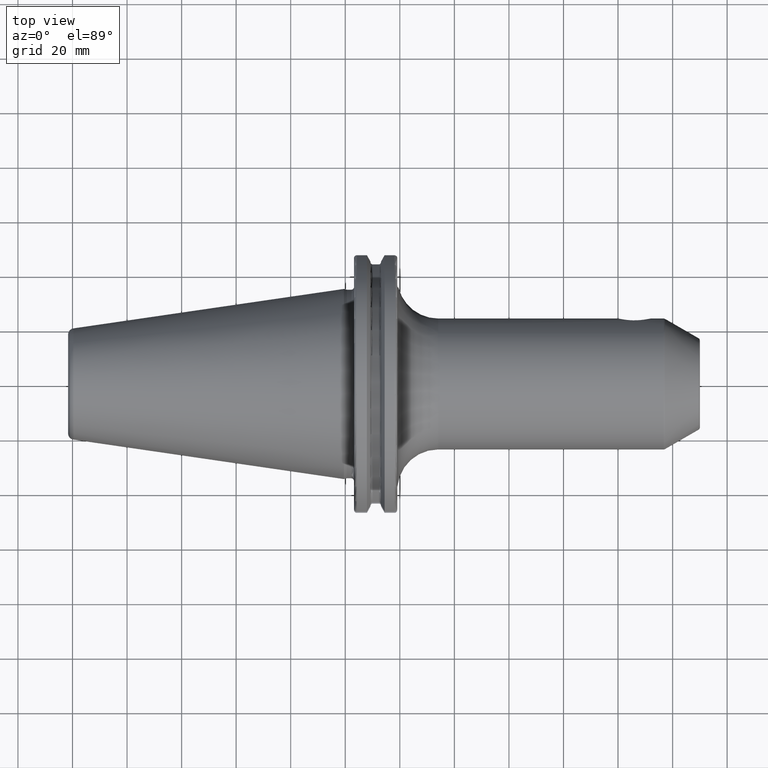
[diagram: clean part render]
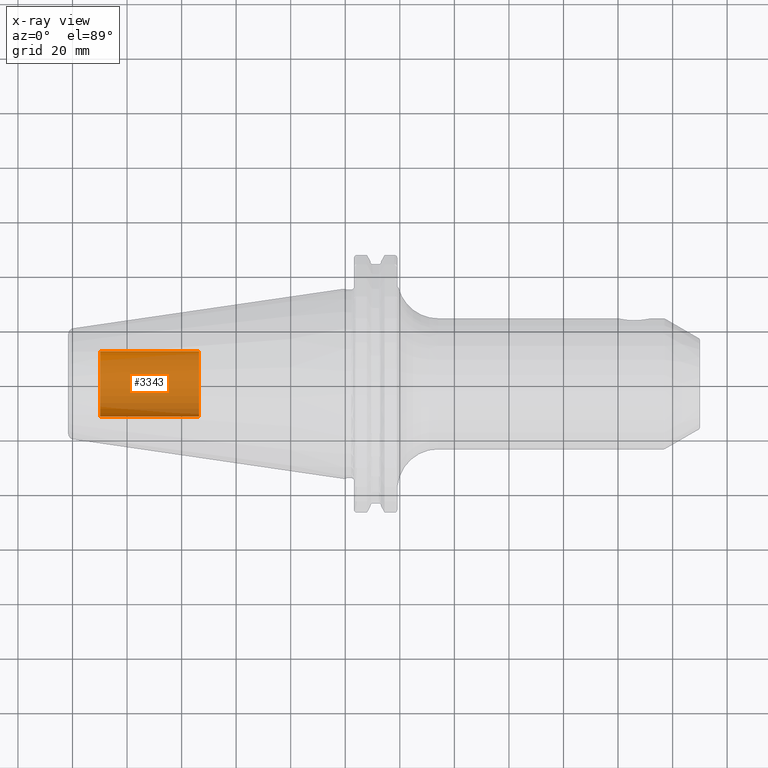
[diagram: x-ray — body ghosted, one internal face saturated and labeled with its STEP entity id]
A machine part, top view, then the same camera in x-ray: the body is ghosted and one INTERNAL B-rep face — a face not visible from any outside direction — is saturated and labeled: STEP entity #3343.
In plain terms, the highlighted cylindrical surface (edge-blend (fillet) strip) has radius 12.0032 mm, axis along (1, 0, 0).
Its self-contained STEP definition (entity closure, byte-faithful):
#3278=CARTESIAN_POINT('',(-8.985E1,0.E0,0.E0));
#3279=DIRECTION('',(-1.E0,0.E0,0.E0));
#3280=DIRECTION('',(0.E0,1.E0,0.E0));
#3281=AXIS2_PLACEMENT_3D('',#3278,#3279,#3280);
#3283=DIRECTION('',(1.E0,0.E0,0.E0));
#3284=VECTOR('',#3283,3.625E1);
#3285=CARTESIAN_POINT('',(-8.985E1,-1.200325E1,0.E0));
#3286=LINE('',#3285,#3284);
#3292=DIRECTION('',(1.E0,0.E0,0.E0));
#3293=VECTOR('',#3292,3.625E1);
#3294=CARTESIAN_POINT('',(-8.985E1,1.200325E1,0.E0));
#3295=LINE('',#3294,#3293);
#3301=CARTESIAN_POINT('',(-5.36E1,0.E0,0.E0));
#3302=DIRECTION('',(1.E0,0.E0,0.E0));
#3303=DIRECTION('',(0.E0,-1.E0,0.E0));
#3304=AXIS2_PLACEMENT_3D('',#3301,#3302,#3303);
#3316=CARTESIAN_POINT('',(-8.985E1,1.200325E1,0.E0));
#3317=CARTESIAN_POINT('',(-8.985E1,-1.200325E1,0.E0));
#3318=VERTEX_POINT('',#3316);
#3319=VERTEX_POINT('',#3317);
#3320=CARTESIAN_POINT('',(-5.36E1,1.200325E1,0.E0));
#3321=CARTESIAN_POINT('',(-5.36E1,-1.200325E1,0.E0));
#3322=VERTEX_POINT('',#3320);
#3323=VERTEX_POINT('',#3321);
#3328=CARTESIAN_POINT('',(-8.985E1,0.E0,0.E0));
#3329=DIRECTION('',(1.E0,0.E0,0.E0));
#3330=DIRECTION('',(0.E0,1.E0,0.E0));
#3331=AXIS2_PLACEMENT_3D('',#3328,#3329,#3330);
#3332=CYLINDRICAL_SURFACE('',#3331,1.200325E1);
#3334=ORIENTED_EDGE('',*,*,#3333,.T.);
#3336=ORIENTED_EDGE('',*,*,#3335,.T.);
#3338=ORIENTED_EDGE('',*,*,#3337,.T.);
#3340=ORIENTED_EDGE('',*,*,#3339,.F.);
#3341=EDGE_LOOP('',(#3334,#3336,#3338,#3340));
#3342=FACE_OUTER_BOUND('',#3341,.F.);
#3343=ADVANCED_FACE('',(#3342),#3332,.T.);
#3282=CIRCLE('',#3281,1.200325E1);
#3305=CIRCLE('',#3304,1.200325E1);
#3333=EDGE_CURVE('',#3318,#3319,#3282,.T.);
#3335=EDGE_CURVE('',#3319,#3323,#3286,.T.);
#3337=EDGE_CURVE('',#3323,#3322,#3305,.T.);
#3339=EDGE_CURVE('',#3318,#3322,#3295,.T.);